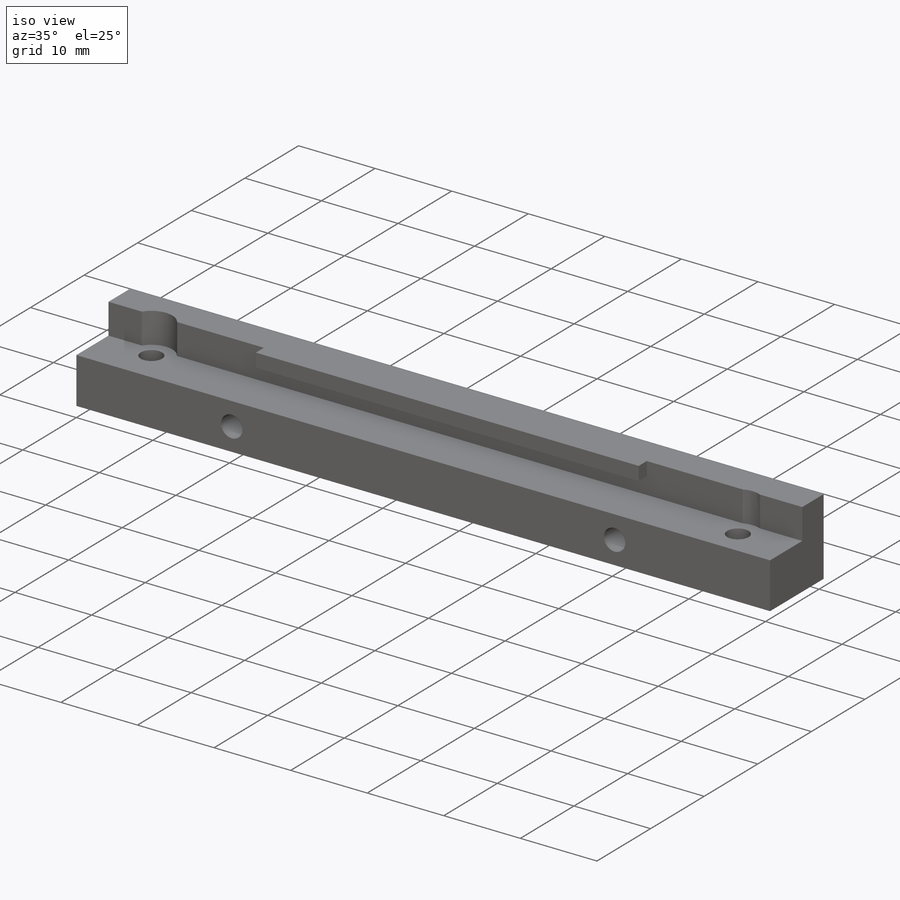
[diagram: iso view]
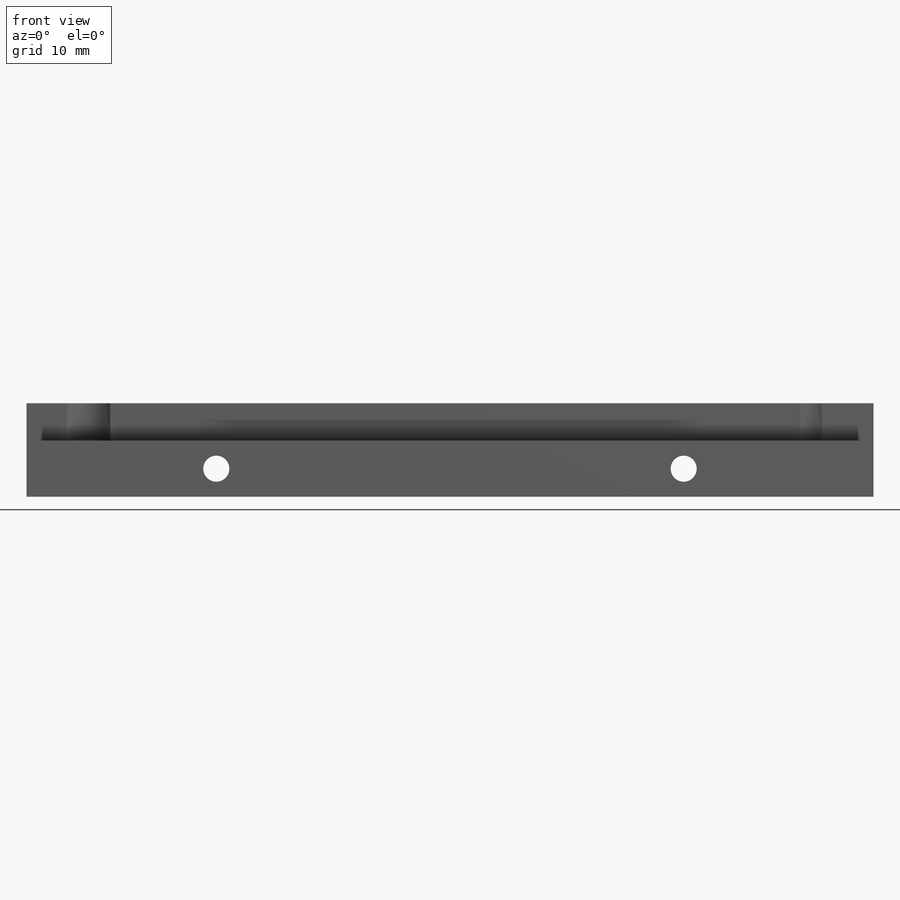
[diagram: front view]
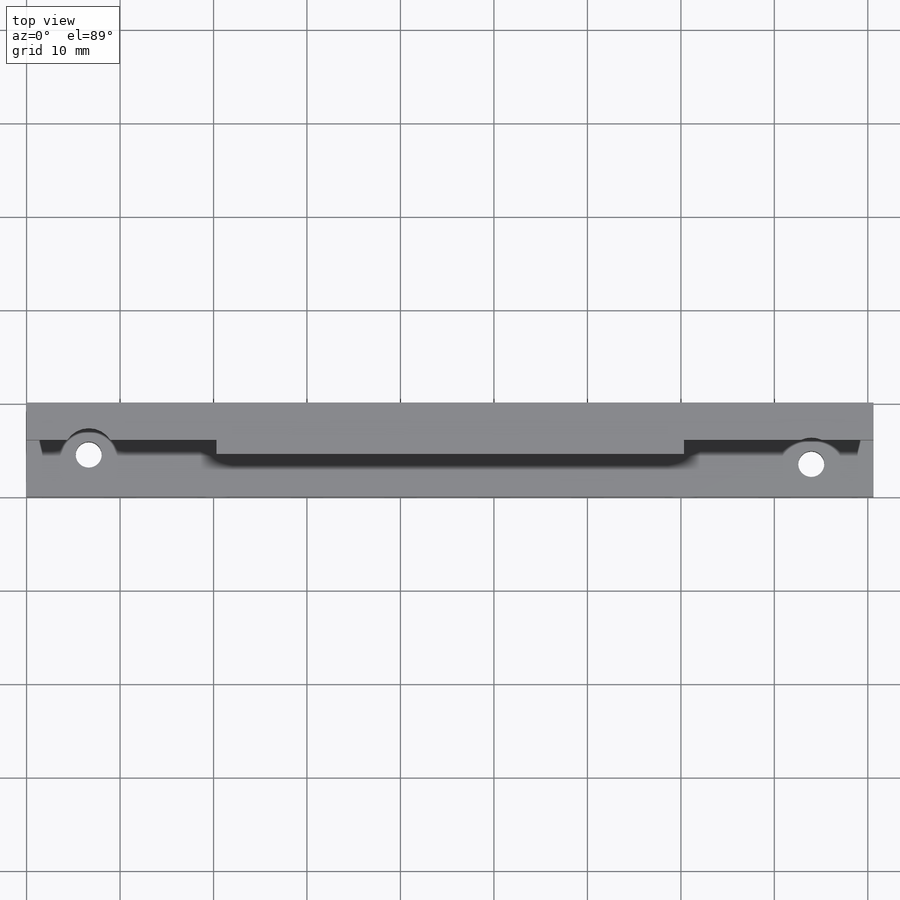
[diagram: top view]
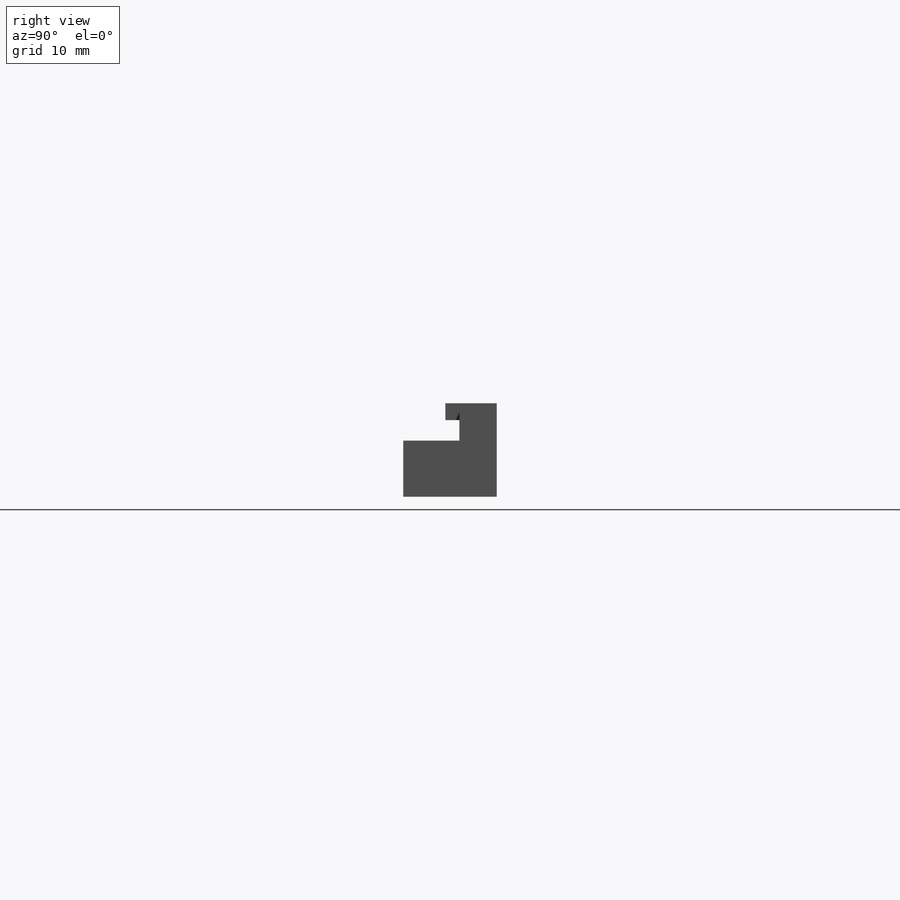
[diagram: right view]
SOLIDWORKS PART (.sldprt)
format: sldprt  version: not decoded by parser v0  size: 211,456 bytes
history: native  units: mm
features: sketch x6, cut_extrude x4, plane x3, extrude x2, material x1 (+10 scaffold rows collapsed)
feature tree (26):
  scaffold x10  (default folders/planes/origin — collapsed)
  material  "Matériau <non spécifié>"
  plane  "Plan de face"
  plane  "Plan de dessus"
  plane  "Plan de droite"
  sketch  "Esquisse1"  dims[D1=90.6mm D2=10.0mm]
  extrude  "Boss.-Extru.1"  Depth=10mm
  sketch  "Esquisse2"  dims[D1=4.0mm]
  cut_extrude  "Enlèv. mat.-Extru.1"  Depth=6mm
  sketch  "Esquisse3"  dims[D1=2.8mm D2=2.8mm D3=1.5mm D4=2.5mm D5=6.65mm D6=6.65mm D7=77.3mm]
  cut_extrude  "Enlèv. mat.-Extru.2"  Depth=6mm
  sketch  "Esquisse4"  dims[D1=1.8mm D2=20.3mm D3=20.3mm D4=50.0mm]
  extrude  "Boss.-Extru.2"  Depth=1.5mm
  sketch  "Esquisse5"  dims[D1=5.5mm D2=5.5mm]
  cut_extrude  "Enlèv. mat.-Extru.3"  Depth=4mm
  sketch  "Esquisse6"  dims[D1=2.8mm D2=2.8mm D3=20.3mm D4=20.3mm D5=50.0mm D6=3.0mm D7=3.0mm]
  cut_extrude  "Enlèv. mat.-Extru.4"  [1 undecoded]
decode coverage: 11 of 12 modeling features carry decoded parameters
note: 1 parameter value undecoded
note: suppression state not decoded; provenance and decode notes live in map.json
